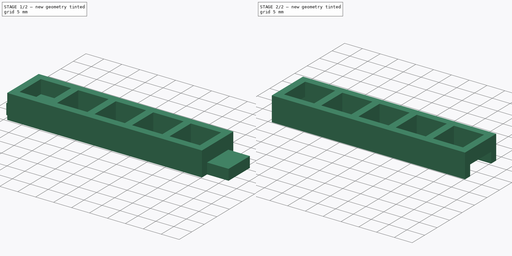
[diagram: build sequence overview — one tinted view per stage of 2, left to right]
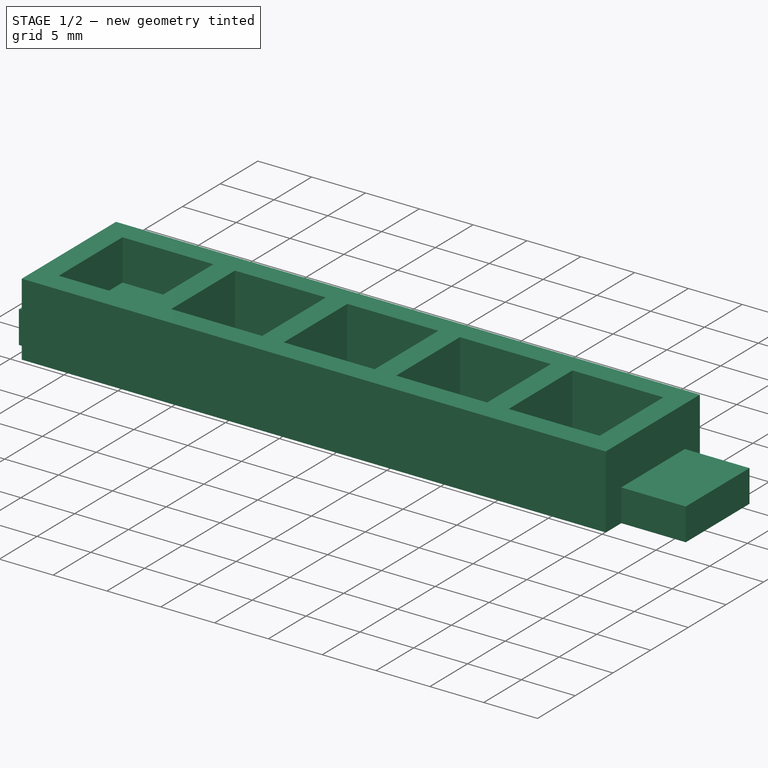
[diagram: stage 1 of 2 — iso view after this stage's code; geometry added in this stage tinted green]
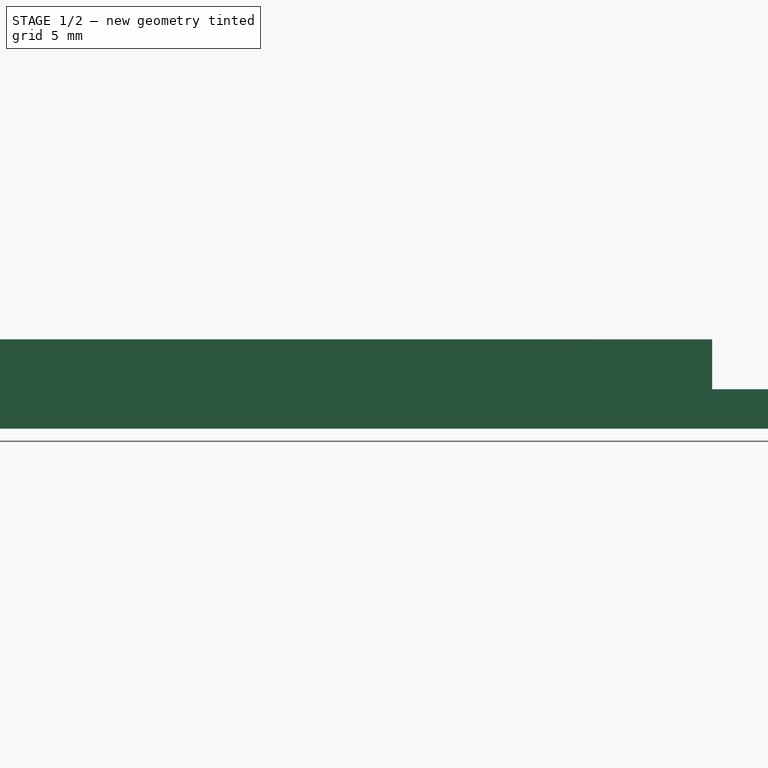
[diagram: stage 1 of 2 — front view after this stage's code; geometry added in this stage tinted green]
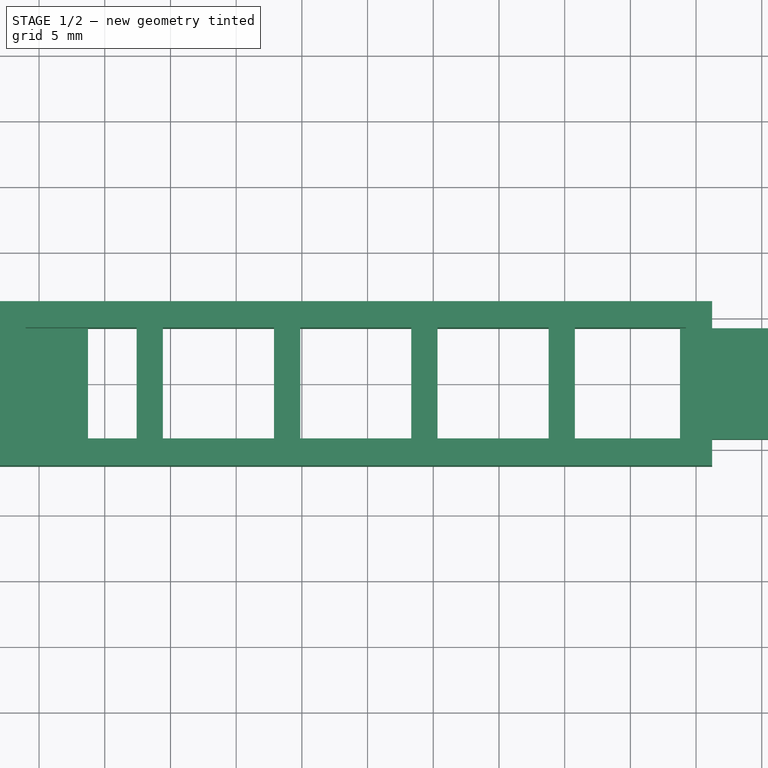
[diagram: stage 1 of 2 — top view after this stage's code; geometry added in this stage tinted green]
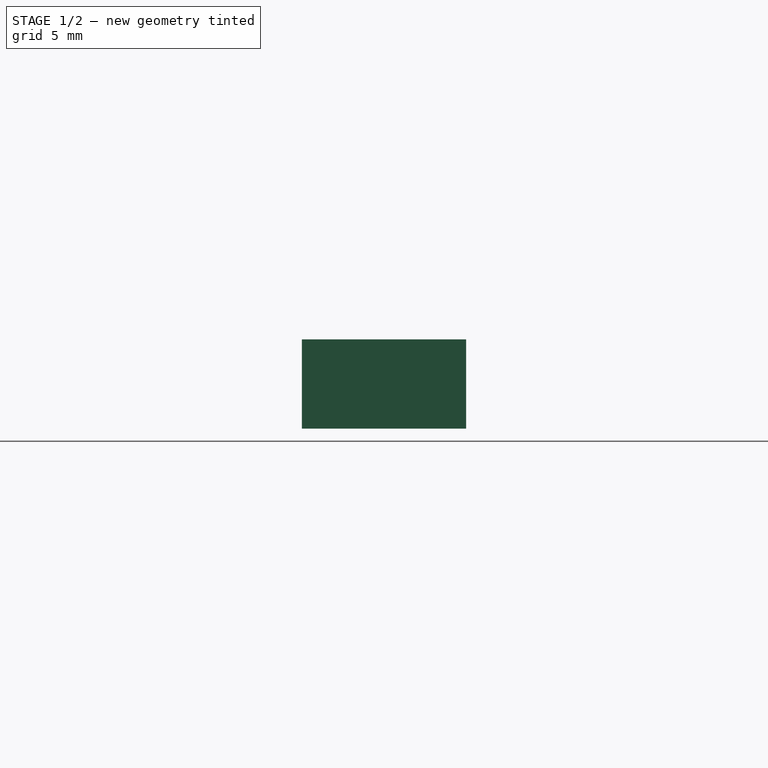
[diagram: stage 1 of 2 — right view after this stage's code; geometry added in this stage tinted green]
FCSTD DOCUMENT  (FreeCAD 0.21R33771 (Git))
Label: 6IN8SHELL-LEDFORT5
License: All rights reserved
LicenseURL: http://en.wikipedia.org/wiki/All_rights_reserved
objects: Sketcher::SketchObject×2, PartDesign::Body×2, Part::Extrusion×2, Part::Cut×1
note: 7 computed .brp shape members not serialized (recipe doc carries the construction recipe); baked Part::Feature solids carry a one-line shape summary decoded from their .brp

FEATURE [Sketcher::SketchObject] Sketch
  FullyConstrained = true
  MapMode = 5
  Support = -> [XY_Plane]
  sketch-geometry (29):
    g0: LineSegment StartX=-4.225 StartY=-4.225 StartZ=0 EndX=-4.225 EndY=4.225 EndZ=0
    g1: LineSegment StartX=-4.225 StartY=4.225 StartZ=0 EndX=4.225 EndY=4.225 EndZ=0
    g2: LineSegment StartX=4.225 StartY=4.225 StartZ=0 EndX=4.225 EndY=-4.225 EndZ=0
    g3: LineSegment StartX=4.225 StartY=-4.225 StartZ=0 EndX=-4.225 EndY=-4.225 EndZ=0
    g4: GeomPoint X=0 Y=0 Z=0
    g5: GeomPoint X=0 Y=0 Z=0
    g6: LineSegment StartX=-14.675 StartY=-4.225 StartZ=0 EndX=-14.675 EndY=4.225 EndZ=0
    g7: LineSegment StartX=-14.675 StartY=4.225 StartZ=0 EndX=-6.225 EndY=4.225 EndZ=0
    g8: LineSegment StartX=-6.225 StartY=4.225 StartZ=0 EndX=-6.225 EndY=-4.225 EndZ=0
    g9: LineSegment StartX=-4.225 StartY=-4.225 StartZ=0 EndX=-14.675 EndY=-4.225 EndZ=0
    g10: LineSegment StartX=-25.125 StartY=-4.225 StartZ=0 EndX=-25.125 EndY=4.225 EndZ=0
    g11: LineSegment StartX=-25.125 StartY=4.225 StartZ=0 EndX=-16.675 EndY=4.225 EndZ=0
    g12: LineSegment StartX=-16.675 StartY=4.225 StartZ=0 EndX=-16.675 EndY=-4.225 EndZ=0
    g13: LineSegment StartX=-14.675 StartY=-4.225 StartZ=0 EndX=-25.125 EndY=-4.225 EndZ=0
    g14: LineSegment StartX=-35.575 StartY=-4.225 StartZ=0 EndX=-35.575 EndY=4.225 EndZ=0
    g15: LineSegment StartX=-35.575 StartY=4.225 StartZ=0 EndX=-27.125 EndY=4.225 EndZ=0
    g16: LineSegment StartX=-27.125 StartY=4.225 StartZ=0 EndX=-27.125 EndY=-4.225 EndZ=0
    g17: LineSegment StartX=-25.125 StartY=-4.225 StartZ=0 EndX=-35.575 EndY=-4.225 EndZ=0
    g18: LineSegment StartX=-46.025 StartY=-4.225 StartZ=0 EndX=-46.025 EndY=4.225 EndZ=0
    g19: LineSegment StartX=-46.025 StartY=4.225 StartZ=0 EndX=-37.575 EndY=4.225 EndZ=0
    g20: LineSegment StartX=-37.575 StartY=4.225 StartZ=0 EndX=-37.575 EndY=-4.225 EndZ=0
    g21: LineSegment StartX=6.225 StartY=6.225 StartZ=0 EndX=-48.025 EndY=6.225 EndZ=0
    g22: LineSegment StartX=-48.025 StartY=6.225 StartZ=0 EndX=-48.025 EndY=-6.275 EndZ=0
    g23: LineSegment StartX=6.225 StartY=6.225 StartZ=0 EndX=6.225 EndY=-6.275 EndZ=0
    g24: LineSegment StartX=6.225 StartY=-6.275 StartZ=0 EndX=-48.025 EndY=-6.275 EndZ=0
    g25: LineSegment StartX=-46.025 StartY=-4.225 StartZ=0 EndX=-37.575 EndY=-4.225 EndZ=0
    g26: LineSegment StartX=-35.575 StartY=-4.225 StartZ=0 EndX=-27.125 EndY=-4.225 EndZ=0
    g27: LineSegment StartX=-25.125 StartY=-4.225 StartZ=0 EndX=-16.675 EndY=-4.225 EndZ=0
    g28: LineSegment StartX=-14.675 StartY=-4.225 StartZ=0 EndX=-6.225 EndY=-4.225 EndZ=0
  constraints (79):
    c: Coincident(g0,g1)
    c: Coincident(g1,g2)
    c: Coincident(g2,g3)
    c: Horizontal(g1)
    c: Horizontal(g3)
    c: Vertical(g0)
    c: Vertical(g2)
    c: Symmetric(g1,g0,g4)
    c: Coincident(g4,g-1)
    c: DistanceX(g1,g1) = 8.45
    c: DistanceY(g0,g0) = 8.45
    c: Coincident(g5,g4)
    c: Coincident(g6,g7)
    c: Coincident(g7,g8)
    c: Horizontal(g7)
    c: Vertical(g6)
    c: Vertical(g8)
    c: DistanceX(g7,g7) = 8.45
    c: Coincident(g0,g9)
    c: Coincident(g6,g9)
    c: Distance(g9) = 10.45
    c: Coincident(g10,g11)
    c: Coincident(g11,g12)
    c: Horizontal(g11)
    c: Vertical(g10)
    c: Vertical(g12)
    c: DistanceX(g11,g11) = 8.45
    c: DistanceY(g10,g10) = 8.45
    c: Coincident(g6,g13)
    c: Coincident(g10,g13)
    c: Equal(g9,g13)
    c: Parallel(g13,g9)
    c: Coincident(g14,g15)
    c: Coincident(g15,g16)
    c: Horizontal(g15)
    c: Vertical(g14)
    c: Vertical(g16)
    c: DistanceX(g15,g15) = 8.45
    c: DistanceY(g14,g14) = 8.45
    c: Coincident(g10,g17)
    c: Coincident(g14,g17)
    c: Equal(g9,g17)
    c: Parallel(g17,g9)
    c: Coincident(g18,g19)
    c: Coincident(g19,g20)
    c: Horizontal(g19)
    c: Vertical(g18)
    c: Vertical(g20)
    c: DistanceX(g19,g19) = 8.45
    c: DistanceY(g18,g18) = 8.45
    c: Horizontal(g21)
    c: Coincident(g22,g21)
    c: DistanceY(g1,g21) = 2
    c: DistanceX(g1,g21) = 2
    c: Coincident(g23,g21)
    c: Vertical(g23)
    c: Coincident(g24,g23)
    c: Horizontal(g24)
    c: Coincident(g22,g24)
    c: DistanceY(g22,g22) = 12.5
    c: Vertical(g22)
    c: DistanceX(g21,g18) = 2
    c: Coincident(g25,g18)
    c: Coincident(g25,g20)
    c: Horizontal(g25)
    c: Coincident(g26,g14)
    c: Coincident(g26,g16)
    c: Horizontal(g26)
    c: Coincident(g27,g10)
    c: Coincident(g27,g12)
    c: Horizontal(g27)
    c: Coincident(g28,g8)
    c: Horizontal(g28)
    c: Coincident(g6,g28)
    c: DistanceY(g6,g6) = 8.45
    c: DistanceY(g18,g21) = 2
    c: DistanceX(g20,g14) = 2
    c: DistanceX(g16,g10) = 2
    c: Coincident(g0,g3)
FEATURE [PartDesign::Body] Body
  Group = -> [Sketch]
  Origin = -> Origin
FEATURE [Part::Extrusion] Extrude
  Base = -> Sketch
  Dir = (0,0,1)
  DirMode = 2
  FaceMakerClass = Part::FaceMakerBullseye
  LengthFwd = 6.8
  LengthRev = 0
  Solid = true
  Symmetric = false
FEATURE [Sketcher::SketchObject] Sketch001
  FullyConstrained = true
  MapMode = 5
  Support = -> [XY_Plane001]
  sketch-geometry (10):
    g0: LineSegment StartX=-41.275 StartY=-4.225 StartZ=0 EndX=-41.275 EndY=4.225 EndZ=0
    g1: LineSegment StartX=-41.275 StartY=4.225 StartZ=0 EndX=-49.725 EndY=4.225 EndZ=0
    g2: LineSegment StartX=-49.725 StartY=4.225 StartZ=0 EndX=-49.725 EndY=-4.225 EndZ=0
    g3: LineSegment StartX=-49.725 StartY=-4.225 StartZ=0 EndX=-41.275 EndY=-4.225 EndZ=0
    g4: GeomPoint X=-45.5 Y=0 Z=0
    g5: LineSegment StartX=12.225 StartY=-4.225 StartZ=0 EndX=12.225 EndY=4.225 EndZ=0
    g6: LineSegment StartX=12.225 StartY=4.225 StartZ=0 EndX=3.775 EndY=4.225 EndZ=0
    g7: LineSegment StartX=3.775 StartY=4.225 StartZ=0 EndX=3.775 EndY=-4.225 EndZ=0
    g8: LineSegment StartX=3.775 StartY=-4.225 StartZ=0 EndX=12.225 EndY=-4.225 EndZ=0
    g9: GeomPoint X=8 Y=0 Z=0
  constraints (26):
    c: Coincident(g0,g1)
    c: Coincident(g1,g2)
    c: Coincident(g2,g3)
    c: Coincident(g3,g0)
    c: Horizontal(g1)
    c: Horizontal(g3)
    c: Vertical(g0)
    c: Vertical(g2)
    c: Symmetric(g1,g0,g4)
    c: PointOnObject(g4,g-1)
    c: Coincident(g5,g6)
    c: Coincident(g6,g7)
    c: Coincident(g7,g8)
    c: Coincident(g8,g5)
    c: Horizontal(g6)
    c: Horizontal(g8)
    c: Vertical(g5)
    c: Vertical(g7)
    c: Symmetric(g6,g5,g9)
    c: PointOnObject(g9,g-1)
    c: DistanceY(g2,g2) = 8.45
    c: DistanceX(g1,g1) = 8.45
    c: DistanceX(g4,g-1) = 45.5
    c: DistanceY(g5,g5) = 8.45
    c: DistanceX(g6,g6) = 8.45
    c: DistanceX(g-1,g9) = 8
FEATURE [PartDesign::Body] Body001
  Group = -> [Sketch001]
  Origin = -> Origin001
FEATURE [Part::Extrusion] Extrude001
  Base = -> Sketch001
  Dir = (0,0,1)
  DirMode = 2
  FaceMakerClass = Part::FaceMakerBullseye
  LengthFwd = 3
  LengthRev = 0
  Solid = true
  Symmetric = false
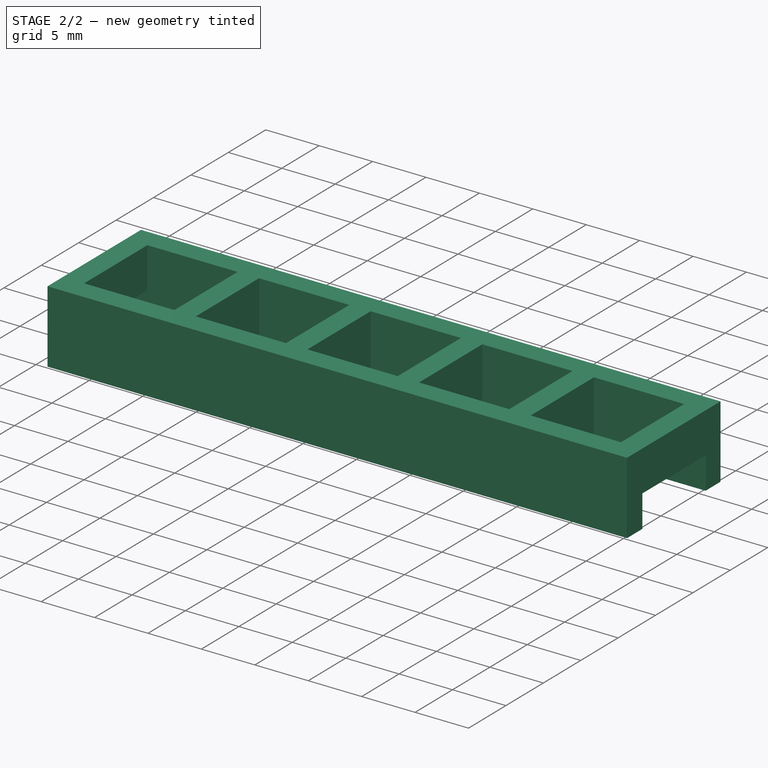
[diagram: stage 2 of 2 — iso view after this stage's code; geometry added in this stage tinted green]
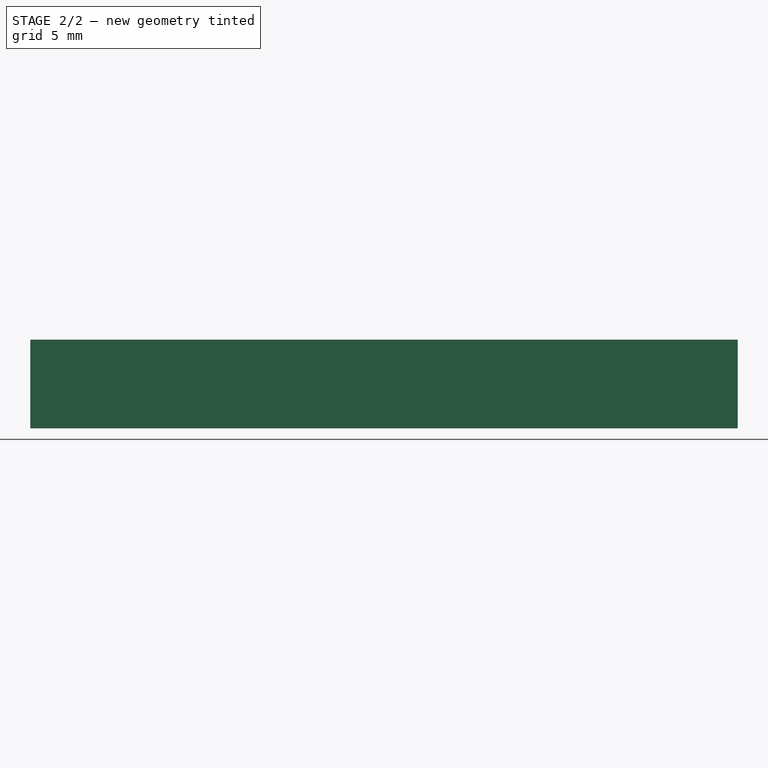
[diagram: stage 2 of 2 — front view after this stage's code; geometry added in this stage tinted green]
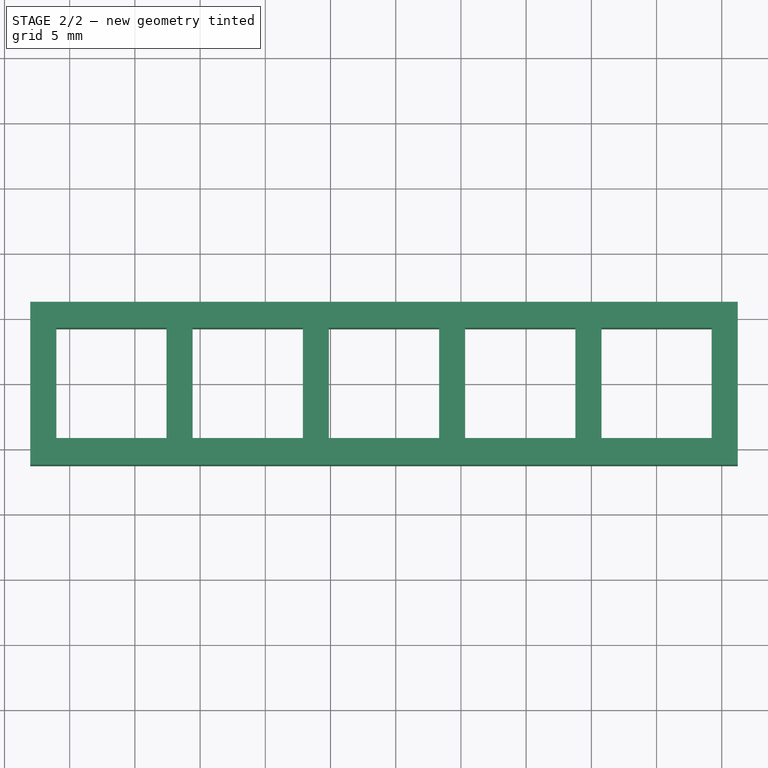
[diagram: stage 2 of 2 — top view after this stage's code; geometry added in this stage tinted green]
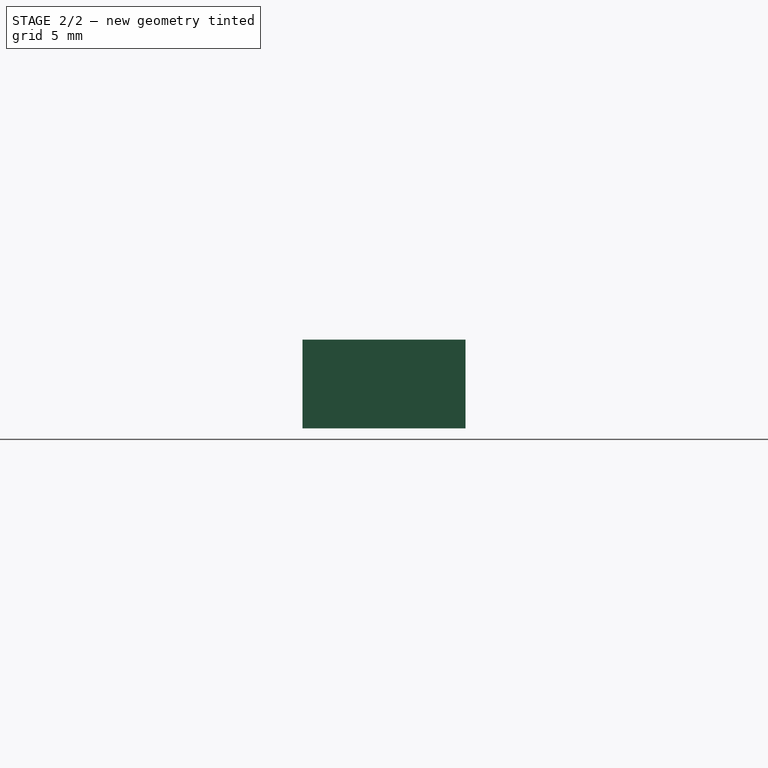
[diagram: stage 2 of 2 — right view after this stage's code; geometry added in this stage tinted green]
FEATURE [Part::Cut] Cut
  Base = -> Extrude
  Tool = -> Extrude001
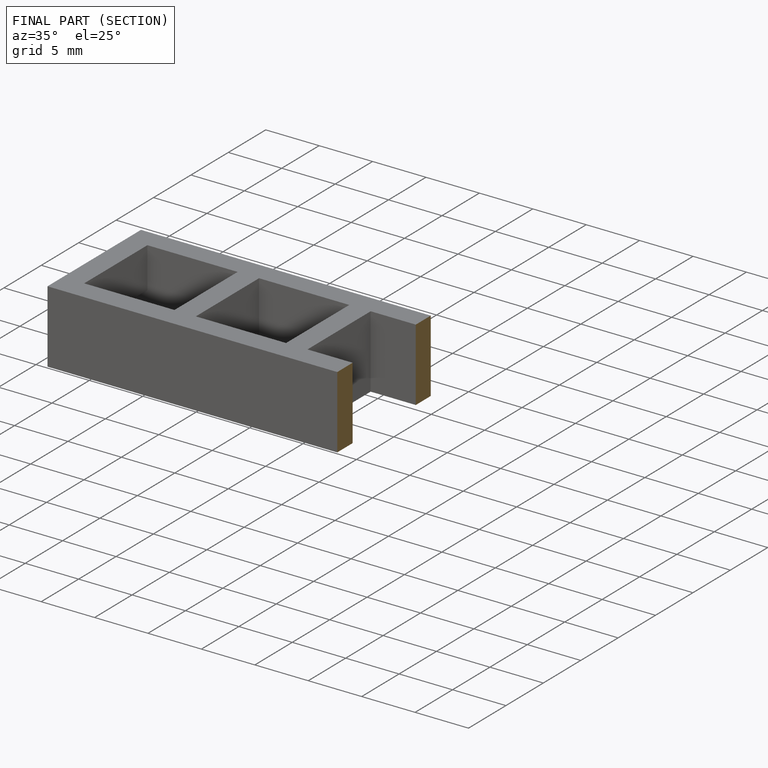
[diagram: finished part — half-section view (interior)]
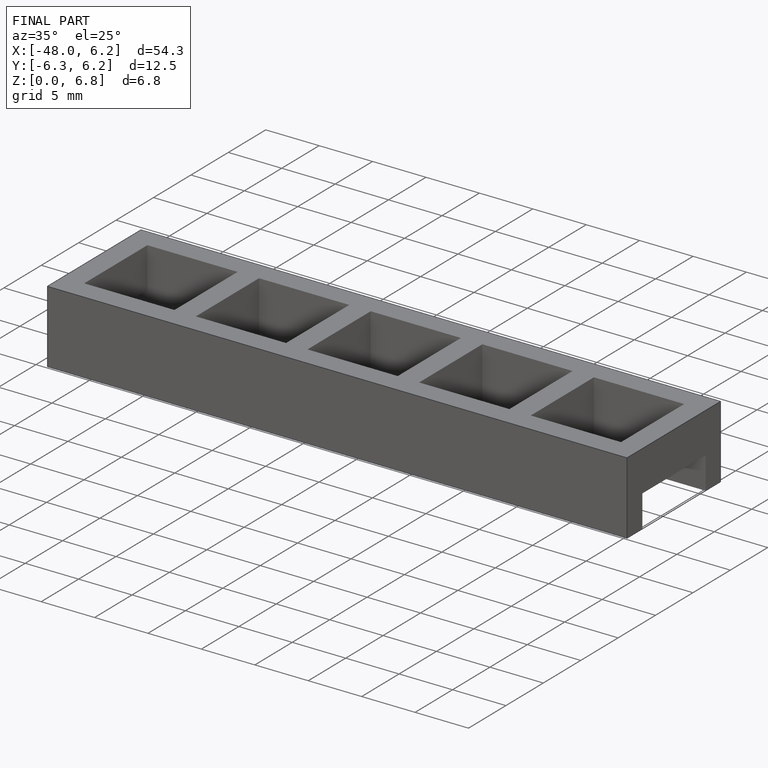
[diagram: finished part — iso view with bounding-box wireframe]
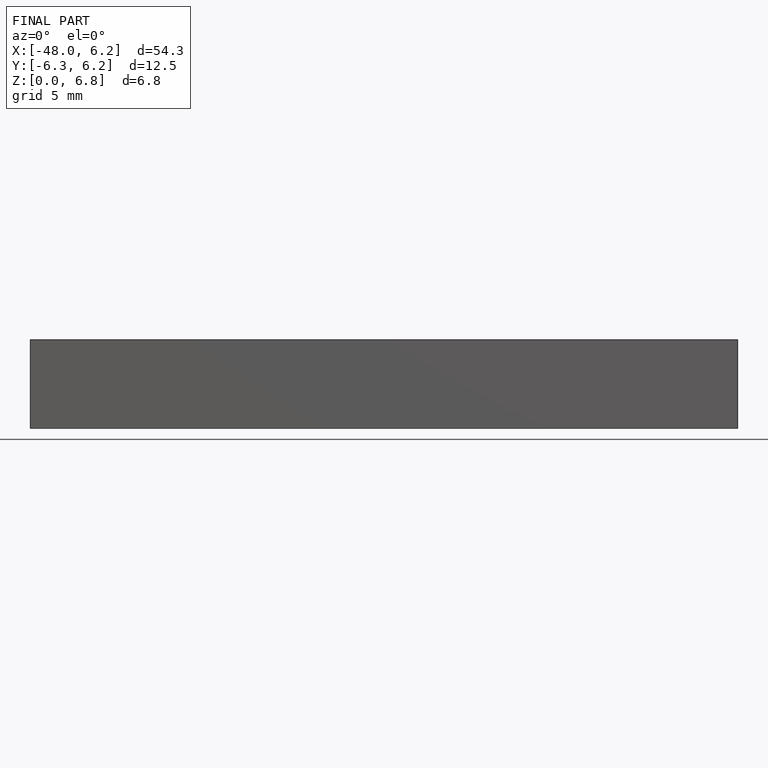
[diagram: finished part — front view with bounding-box wireframe]
